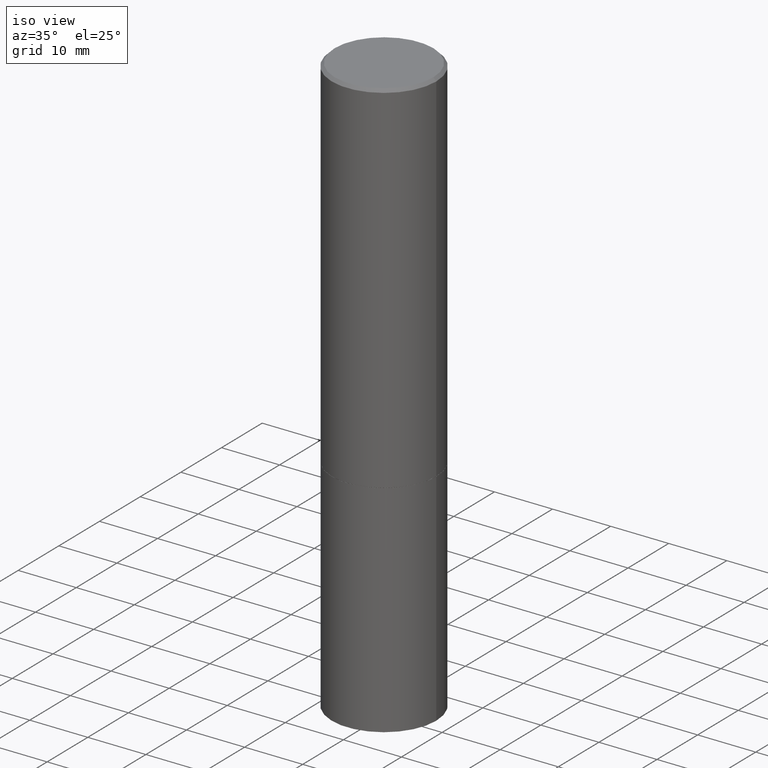
[diagram: clean part render]
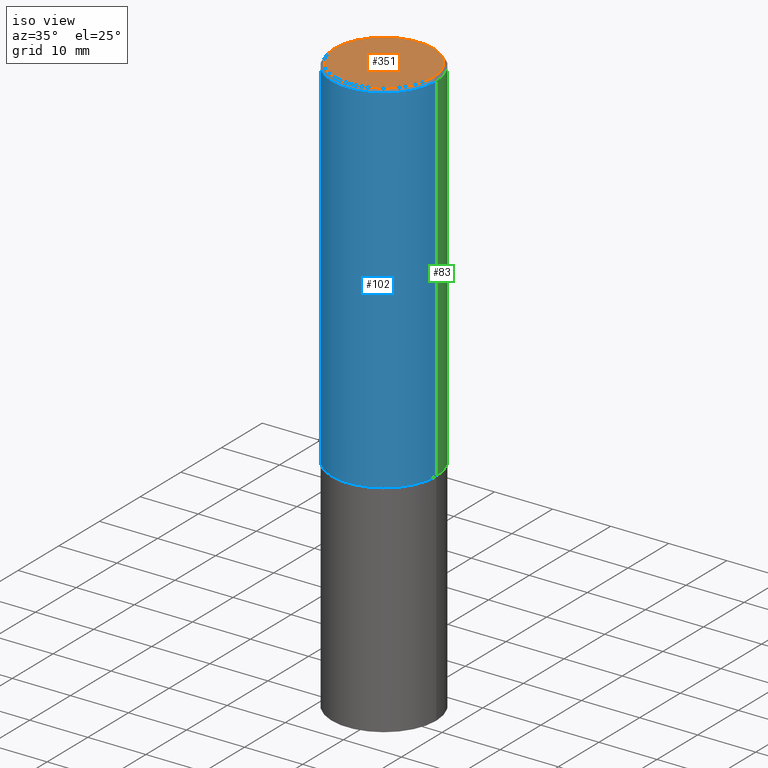
[diagram: same view with three faces highlighted in distinct colors, each labeled with its STEP entity id]
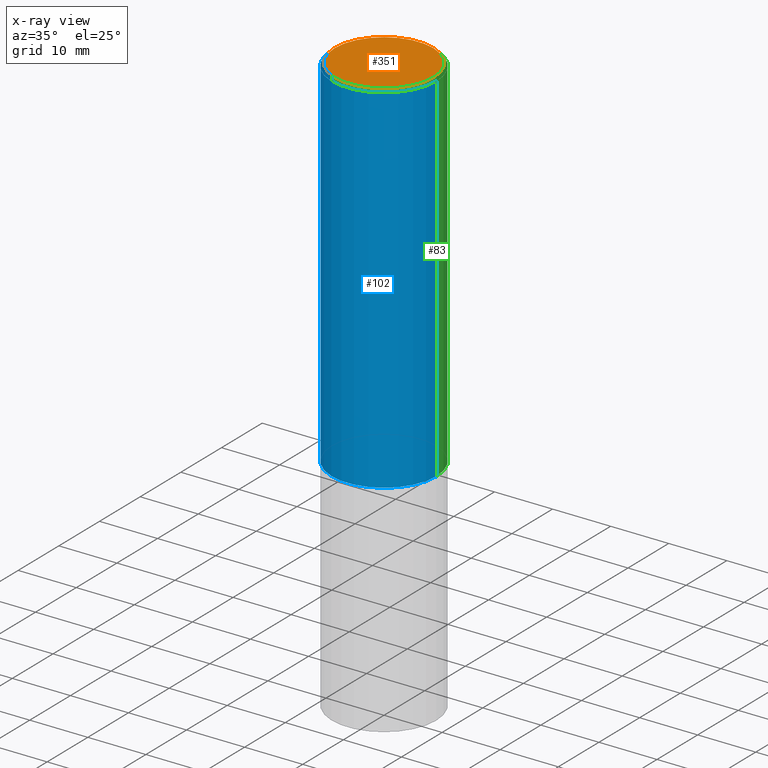
[diagram: x-ray of the same camera — body ghosted, the three highlighted faces saturated]
A machine part, iso view with three faces highlighted in distinct colors.
The next image is the same camera in x-ray (body ghosted, the three faces saturated) — at least one of them is partly hidden behind the body in this view.
Their STEP definitions:

[orange] entity #351 — the highlighted planar face has unit normal (0, -0, -1).
#19 = FACE_OUTER_BOUND ( 'NONE', #81, .T. ) ;
#31 = ORIENTED_EDGE ( 'NONE', *, *, #71, .T. ) ;
#71 = EDGE_CURVE ( 'NONE', #363, #207, #366, .T. ) ;
#81 = EDGE_LOOP ( 'NONE', ( #31, #235 ) ) ;
#106 = DIRECTION ( 'NONE',  ( 1.000000000000000000, -6.982962677686266711E-15, 4.876061227832602160E-29 ) ) ;
#135 = DIRECTION ( 'NONE',  ( -2.445468806185136597E-29, 3.491481338843145583E-15, 1.000000000000000000 ) ) ;
#141 = CARTESIAN_POINT ( 'NONE',  ( -0.3343499999999996475, 2.369668384672832169E-15, 4.268512490083961526E-18 ) ) ;
#144 = CIRCLE ( 'NONE', #209, 0.3343499999999996475 ) ;
#163 = CARTESIAN_POINT ( 'NONE',  ( 2.334753571284400520E-15, 0.3343499999999996475, -1.165242529397154385E-15 ) ) ;
#165 = EDGE_CURVE ( 'NONE', #207, #363, #144, .T. ) ;
#185 = CARTESIAN_POINT ( 'NONE',  ( -1.043851414335219820E-46, 1.490343170380447200E-32, 4.268512490100411279E-18 ) ) ;
#187 = DIRECTION ( 'NONE',  ( -2.445468806185136597E-29, 3.491481338843145583E-15, 1.000000000000000000 ) ) ;
#207 = VERTEX_POINT ( 'NONE', #265 ) ;
#209 = AXIS2_PLACEMENT_3D ( 'NONE', #185, #187, #357 ) ;
#222 = DIRECTION ( 'NONE',  ( 2.438088387897960049E-29, -3.491481338843145188E-15, -1.000000000000000000 ) ) ;
#230 = CARTESIAN_POINT ( 'NONE',  ( -1.043851414335219820E-46, 1.490343170380447200E-32, 4.268512490100411279E-18 ) ) ;
#231 = AXIS2_PLACEMENT_3D ( 'NONE', #163, #222, #276 ) ;
#235 = ORIENTED_EDGE ( 'NONE', *, *, #165, .T. ) ;
#265 = CARTESIAN_POINT ( 'NONE',  ( 0.3343499999999996475, -2.397327298921056737E-15, 4.268512490116958099E-18 ) ) ;
#276 = DIRECTION ( 'NONE',  ( -1.000000000000000000, 6.982962677686265922E-15, -4.876176775795935793E-29 ) ) ;
#315 = AXIS2_PLACEMENT_3D ( 'NONE', #230, #135, #106 ) ;
#351 = ADVANCED_FACE ( 'NONE', ( #19 ), #358, .F. ) ;
#357 = DIRECTION ( 'NONE',  ( 1.000000000000000000, -6.982962677686266711E-15, 4.876061227832602160E-29 ) ) ;
#358 = PLANE ( 'NONE',  #231 ) ;
#363 = VERTEX_POINT ( 'NONE', #141 ) ;
#366 = CIRCLE ( 'NONE', #315, 0.3343499999999996475 ) ;

[blue] entity #102 — the highlighted cylindrical surface (partial cylindrical patch) has radius 9.0005 mm, axis along (-0, 0, 1).
#2 = EDGE_CURVE ( 'NONE', #173, #130, #120, .T. ) ;
#5 = EDGE_CURVE ( 'NONE', #58, #191, #153, .T. ) ;
#12 = DIRECTION ( 'NONE',  ( 1.000000000000000000, -6.982962677686266711E-15, 4.876176775795935232E-29 ) ) ;
#13 = VECTOR ( 'NONE', #344, 39.37007874015748143 ) ;
#24 = DIRECTION ( 'NONE',  ( 1.000000000000000000, -6.982962677686268288E-15, 0.000000000000000000 ) ) ;
#27 = AXIS2_PLACEMENT_3D ( 'NONE', #80, #113, #247 ) ;
#33 = ORIENTED_EDGE ( 'NONE', *, *, #5, .T. ) ;
#54 = AXIS2_PLACEMENT_3D ( 'NONE', #268, #350, #12 ) ;
#58 = VERTEX_POINT ( 'NONE', #147 ) ;
#80 = CARTESIAN_POINT ( 'NONE',  ( 4.890937612370294178E-31, -6.982962677686321191E-17, -0.02000000000000008715 ) ) ;
#102 = ADVANCED_FACE ( 'NONE', ( #158 ), #132, .T. ) ;
#113 = DIRECTION ( 'NONE',  ( -2.445468806185136597E-29, 3.491481338843145583E-15, 1.000000000000000000 ) ) ;
#120 = LINE ( 'NONE', #126, #196 ) ;
#122 = DIRECTION ( 'NONE',  ( -2.445468806185136877E-29, 3.491481338843145188E-15, 1.000000000000000000 ) ) ;
#126 = CARTESIAN_POINT ( 'NONE',  ( -0.3543499999999998873, 2.517808184165914208E-15, -1.743024649231825225E-29 ) ) ;
#130 = VERTEX_POINT ( 'NONE', #216 ) ;
#132 = CYLINDRICAL_SURFACE ( 'NONE', #54, 0.3543499999999998873 ) ;
#147 = CARTESIAN_POINT ( 'NONE',  ( 0.3543499999999999983, -1.099327814348151984E-14, -2.439900000000000180 ) ) ;
#153 = LINE ( 'NONE', #232, #13 ) ;
#158 = FACE_OUTER_BOUND ( 'NONE', #280, .T. ) ;
#169 = DIRECTION ( 'NONE',  ( -2.445468806185136597E-29, 3.491481338843145583E-15, 1.000000000000000000 ) ) ;
#173 = VERTEX_POINT ( 'NONE', #328 ) ;
#191 = VERTEX_POINT ( 'NONE', #298 ) ;
#196 = VECTOR ( 'NONE', #122, 39.37007874015748143 ) ;
#197 = CARTESIAN_POINT ( 'NONE',  ( 5.966699340211115678E-29, -8.518865318643391536E-15, -2.439900000000000180 ) ) ;
#198 = ORIENTED_EDGE ( 'NONE', *, *, #250, .T. ) ;
#216 = CARTESIAN_POINT ( 'NONE',  ( -0.3543499999999997208, 2.404583198061263424E-15, -0.02000000000000008715 ) ) ;
#232 = CARTESIAN_POINT ( 'NONE',  ( 0.3543499999999998873, -2.474412824838127905E-15, 1.727873240503289188E-29 ) ) ;
#247 = DIRECTION ( 'NONE',  ( 1.000000000000000000, -6.982962677686266711E-15, 0.000000000000000000 ) ) ;
#250 = EDGE_CURVE ( 'NONE', #173, #58, #269, .T. ) ;
#251 = AXIS2_PLACEMENT_3D ( 'NONE', #197, #169, #24 ) ;
#268 = CARTESIAN_POINT ( 'NONE',  ( 0.000000000000000000, 0.000000000000000000, 0.000000000000000000 ) ) ;
#269 = CIRCLE ( 'NONE', #251, 0.3543499999999999983 ) ;
#275 = CIRCLE ( 'NONE', #27, 0.3543499999999997208 ) ;
#280 = EDGE_LOOP ( 'NONE', ( #337, #198, #33, #290 ) ) ;
#290 = ORIENTED_EDGE ( 'NONE', *, *, #345, .F. ) ;
#298 = CARTESIAN_POINT ( 'NONE',  ( 0.3543499999999997208, -2.500847092287203718E-15, -0.02000000000000008715 ) ) ;
#328 = CARTESIAN_POINT ( 'NONE',  ( -0.3543499999999999983, -1.776539288544209660E-15, -2.439900000000000180 ) ) ;
#337 = ORIENTED_EDGE ( 'NONE', *, *, #2, .F. ) ;
#344 = DIRECTION ( 'NONE',  ( -2.445468806185136877E-29, 3.491481338843145188E-15, 1.000000000000000000 ) ) ;
#345 = EDGE_CURVE ( 'NONE', #130, #191, #275, .T. ) ;
#350 = DIRECTION ( 'NONE',  ( -2.445468806185136597E-29, 3.491481338843145583E-15, 1.000000000000000000 ) ) ;

[green] entity #83 — the highlighted cylindrical surface (partial cylindrical patch) has radius 9.0005 mm, axis along (-0, 0, 1).
#2 = EDGE_CURVE ( 'NONE', #173, #130, #120, .T. ) ;
#5 = EDGE_CURVE ( 'NONE', #58, #191, #153, .T. ) ;
#13 = VECTOR ( 'NONE', #344, 39.37007874015748143 ) ;
#21 = DIRECTION ( 'NONE',  ( -2.445468806185136597E-29, 3.491481338843145583E-15, 1.000000000000000000 ) ) ;
#49 = DIRECTION ( 'NONE',  ( 1.000000000000000000, -6.982962677686266711E-15, 0.000000000000000000 ) ) ;
#58 = VERTEX_POINT ( 'NONE', #147 ) ;
#64 = ORIENTED_EDGE ( 'NONE', *, *, #2, .T. ) ;
#72 = DIRECTION ( 'NONE',  ( 1.000000000000000000, -6.982962677686266711E-15, 4.876176775795935232E-29 ) ) ;
#83 = ADVANCED_FACE ( 'NONE', ( #270 ), #327, .T. ) ;
#88 = EDGE_CURVE ( 'NONE', #58, #173, #355, .T. ) ;
#95 = CIRCLE ( 'NONE', #304, 0.3543499999999997208 ) ;
#101 = DIRECTION ( 'NONE',  ( 1.000000000000000000, -6.982962677686268288E-15, 0.000000000000000000 ) ) ;
#120 = LINE ( 'NONE', #126, #196 ) ;
#122 = DIRECTION ( 'NONE',  ( -2.445468806185136877E-29, 3.491481338843145188E-15, 1.000000000000000000 ) ) ;
#126 = CARTESIAN_POINT ( 'NONE',  ( -0.3543499999999998873, 2.517808184165914208E-15, -1.743024649231825225E-29 ) ) ;
#130 = VERTEX_POINT ( 'NONE', #216 ) ;
#147 = CARTESIAN_POINT ( 'NONE',  ( 0.3543499999999999983, -1.099327814348151984E-14, -2.439900000000000180 ) ) ;
#153 = LINE ( 'NONE', #232, #13 ) ;
#173 = VERTEX_POINT ( 'NONE', #328 ) ;
#181 = DIRECTION ( 'NONE',  ( -2.445468806185136597E-29, 3.491481338843145583E-15, 1.000000000000000000 ) ) ;
#190 = CARTESIAN_POINT ( 'NONE',  ( 4.890937612370294178E-31, -6.982962677686321191E-17, -0.02000000000000008715 ) ) ;
#191 = VERTEX_POINT ( 'NONE', #298 ) ;
#196 = VECTOR ( 'NONE', #122, 39.37007874015748143 ) ;
#205 = ORIENTED_EDGE ( 'NONE', *, *, #5, .F. ) ;
#216 = CARTESIAN_POINT ( 'NONE',  ( -0.3543499999999997208, 2.404583198061263424E-15, -0.02000000000000008715 ) ) ;
#232 = CARTESIAN_POINT ( 'NONE',  ( 0.3543499999999998873, -2.474412824838127905E-15, 1.727873240503289188E-29 ) ) ;
#234 = EDGE_LOOP ( 'NONE', ( #321, #64, #326, #205 ) ) ;
#241 = CARTESIAN_POINT ( 'NONE',  ( 0.000000000000000000, 0.000000000000000000, 0.000000000000000000 ) ) ;
#270 = FACE_OUTER_BOUND ( 'NONE', #234, .T. ) ;
#271 = EDGE_CURVE ( 'NONE', #191, #130, #95, .T. ) ;
#298 = CARTESIAN_POINT ( 'NONE',  ( 0.3543499999999997208, -2.500847092287203718E-15, -0.02000000000000008715 ) ) ;
#304 = AXIS2_PLACEMENT_3D ( 'NONE', #190, #21, #49 ) ;
#321 = ORIENTED_EDGE ( 'NONE', *, *, #88, .T. ) ;
#324 = AXIS2_PLACEMENT_3D ( 'NONE', #356, #181, #101 ) ;
#326 = ORIENTED_EDGE ( 'NONE', *, *, #271, .F. ) ;
#327 = CYLINDRICAL_SURFACE ( 'NONE', #335, 0.3543499999999998873 ) ;
#328 = CARTESIAN_POINT ( 'NONE',  ( -0.3543499999999999983, -1.776539288544209660E-15, -2.439900000000000180 ) ) ;
#330 = DIRECTION ( 'NONE',  ( -2.445468806185136597E-29, 3.491481338843145583E-15, 1.000000000000000000 ) ) ;
#335 = AXIS2_PLACEMENT_3D ( 'NONE', #241, #330, #72 ) ;
#344 = DIRECTION ( 'NONE',  ( -2.445468806185136877E-29, 3.491481338843145188E-15, 1.000000000000000000 ) ) ;
#355 = CIRCLE ( 'NONE', #324, 0.3543499999999999983 ) ;
#356 = CARTESIAN_POINT ( 'NONE',  ( 5.966699340211115678E-29, -8.518865318643391536E-15, -2.439900000000000180 ) ) ;